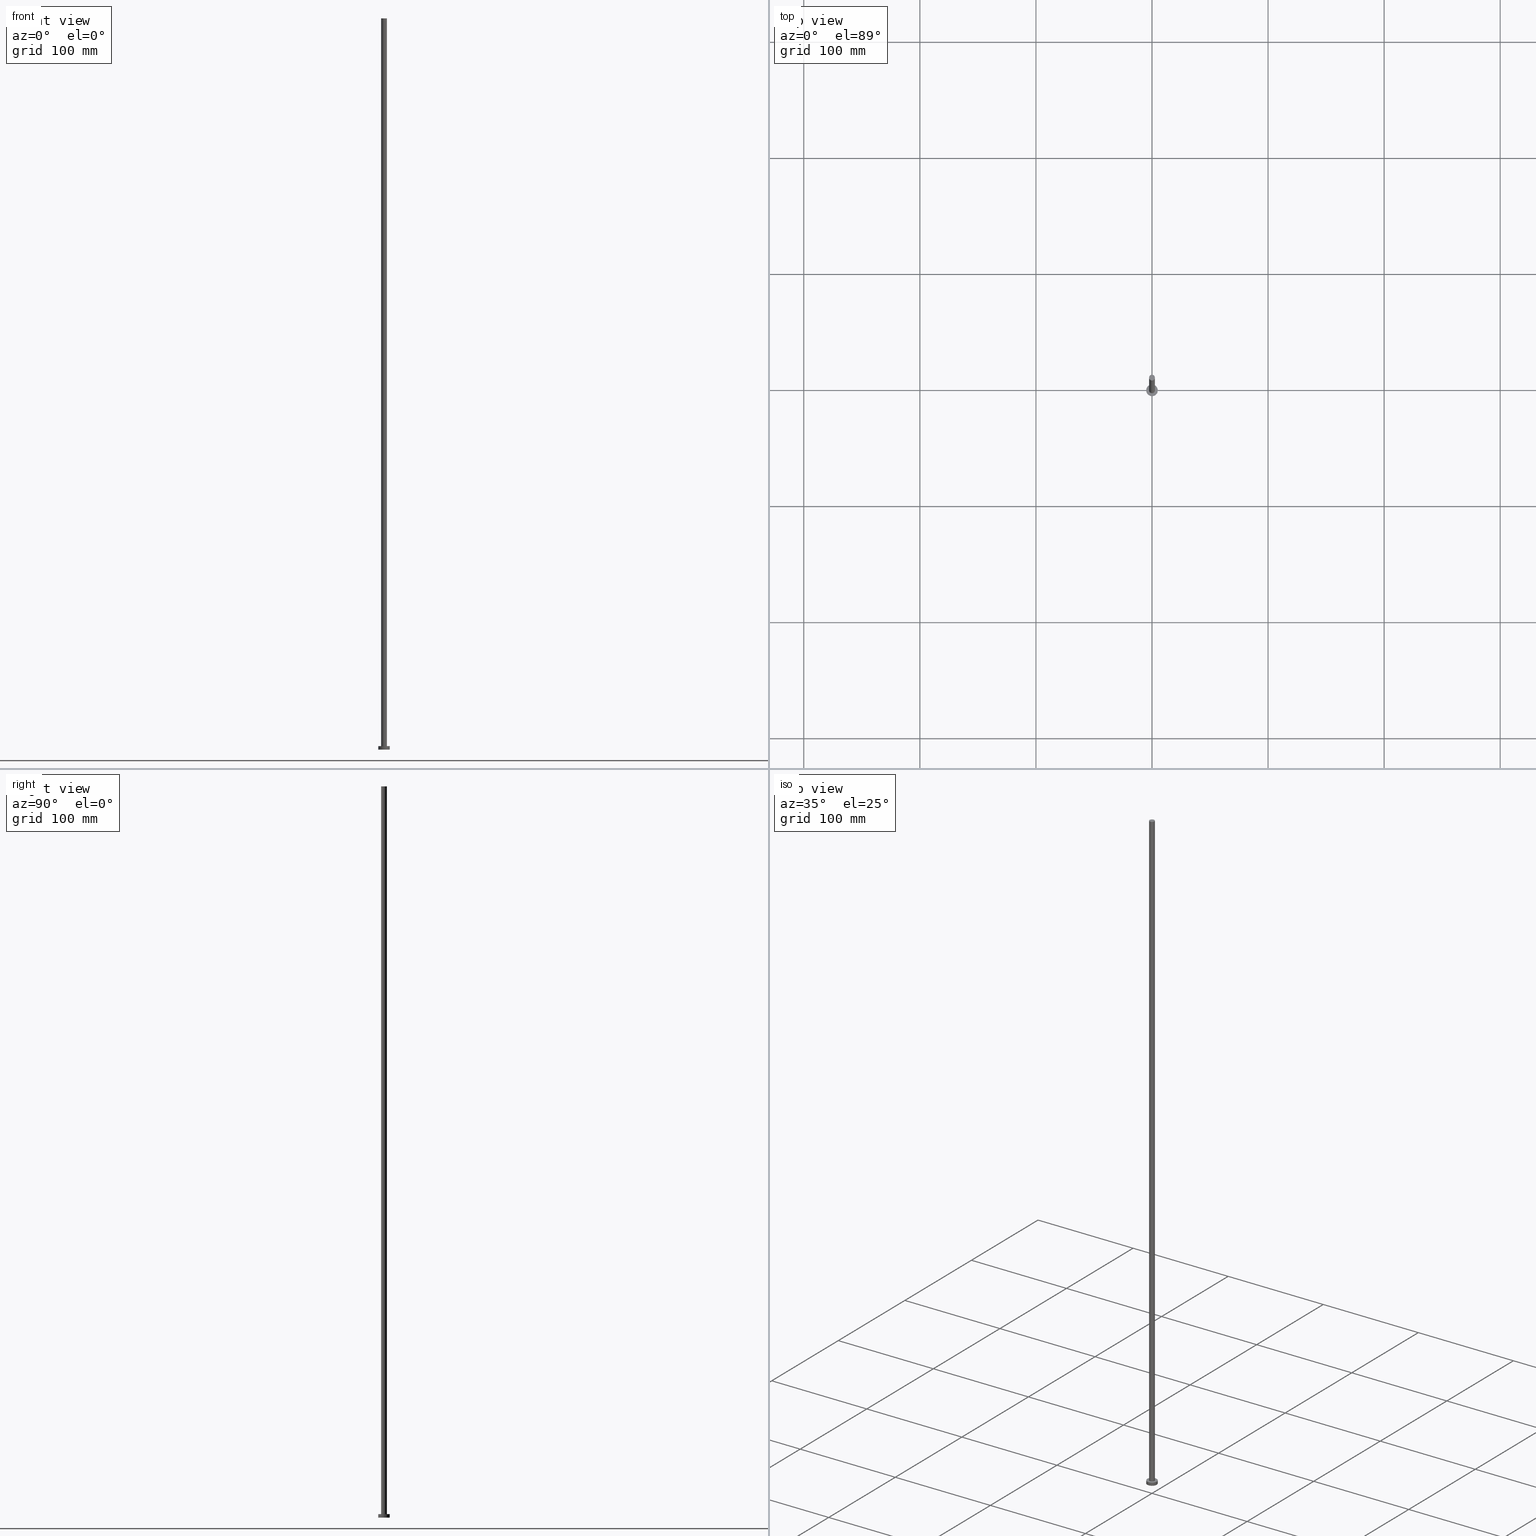
[diagram: canonical four-view strip — front | top / right | iso, engineering-drawing reading convention]
A machine part, canonical four-view strip (front | top / right | iso — engineering-drawing reading convention). The complete STEP part file that produces these views, byte-faithful:
ISO-10303-21;
HEADER;
FILE_DESCRIPTION (( 'STEP AP203' ),
    '1' );
FILE_NAME ('bdb2.STEP',
    '2023-02-12T12:29:07',
    ( '' ),
    ( '' ),
    'SwSTEP 2.0',
    'SolidWorks 2019',
    '' );
FILE_SCHEMA (( 'CONFIG_CONTROL_DESIGN' ));
ENDSEC;

DATA;
#1 = EDGE_CURVE ( 'NONE', #195, #13, #19, .T. ) ;
#2 = APPROVAL_DATE_TIME ( #101, #70 ) ;
#3 = AXIS2_PLACEMENT_3D ( 'NONE', #130, #31, #151 ) ;
#4 = APPLICATION_PROTOCOL_DEFINITION ( 'international standard', 'config_control_design', 1994, #64 ) ;
#5 = FACE_OUTER_BOUND ( 'NONE', #230, .T. ) ;
#6 = CARTESIAN_POINT ( 'NONE',  ( -5.000000000000000000, 0.000000000000000000, 3.000000000000000000 ) ) ;
#7 = ADVANCED_FACE ( 'NONE', ( #5 ), #62, .T. ) ;
#8 = CARTESIAN_POINT ( 'NONE',  ( 0.000000000000000000, 0.000000000000000000, 3.000000000000000000 ) ) ;
#9 = CYLINDRICAL_SURFACE ( 'NONE', #3, 5.000000000000000000 ) ;
#10 = CIRCLE ( 'NONE', #228, 5.000000000000000000 ) ;
#11 = ORIENTED_EDGE ( 'NONE', *, *, #95, .F. ) ;
#12 = APPROVAL ( #242, 'NEUR�EN�' ) ;
#13 = VERTEX_POINT ( 'NONE', #205 ) ;
#14 = ORIENTED_EDGE ( 'NONE', *, *, #15, .F. ) ;
#15 = EDGE_CURVE ( 'NONE', #211, #74, #232, .T. ) ;
#16 = DIRECTION ( 'NONE',  ( -0.000000000000000000, -0.000000000000000000, -1.000000000000000000 ) ) ;
#17 = CARTESIAN_POINT ( 'NONE',  ( -2.500000000000000000, 0.000000000000000000, 630.0000000000000000 ) ) ;
#18 = APPROVAL_STATUS ( 'not_yet_approved' ) ;
#19 = CIRCLE ( 'NONE', #143, 2.500000000000000000 ) ;
#20 = ORGANIZATION ( 'NEUR�EN�', 'NEUR�EN�', '' ) ;
#21 = APPROVAL_STATUS ( 'not_yet_approved' ) ;
#22 = CALENDAR_DATE ( 2023, 12, 2 ) ;
#23 = APPROVAL_ROLE ( '' ) ;
#24 = CARTESIAN_POINT ( 'NONE',  ( 0.000000000000000000, 0.000000000000000000, 630.0000000000000000 ) ) ;
#25 = AXIS2_PLACEMENT_3D ( 'NONE', #239, #165, #218 ) ;
#26 = DIRECTION ( 'NONE',  ( 1.000000000000000000, 0.000000000000000000, -0.000000000000000000 ) ) ;
#27 = DIRECTION ( 'NONE',  ( -1.000000000000000000, 0.000000000000000000, 0.000000000000000000 ) ) ;
#28 = CARTESIAN_POINT ( 'NONE',  ( 0.000000000000000000, 0.000000000000000000, 3.000000000000000000 ) ) ;
#29 = LOCAL_TIME ( 13, 29, 7.000000000000000000, #119 ) ;
#30 = CARTESIAN_POINT ( 'NONE',  ( -5.000000000000000000, 0.000000000000000000, 3.000000000000000000 ) ) ;
#31 = DIRECTION ( 'NONE',  ( -0.000000000000000000, -0.000000000000000000, -1.000000000000000000 ) ) ;
#32 = ORIENTED_EDGE ( 'NONE', *, *, #95, .T. ) ;
#33 = ADVANCED_FACE ( 'NONE', ( #86 ), #183, .T. ) ;
#34 = CC_DESIGN_APPROVAL ( #70, ( #80 ) ) ;
#35 = EDGE_CURVE ( 'NONE', #213, #58, #10, .T. ) ;
#36 = ORIENTED_EDGE ( 'NONE', *, *, #191, .F. ) ;
#37 = ORIENTED_EDGE ( 'NONE', *, *, #221, .T. ) ;
#38 = FACE_OUTER_BOUND ( 'NONE', #173, .T. ) ;
#39 = CARTESIAN_POINT ( 'NONE',  ( 2.500000000000000000, 3.061616997868383141E-16, 3.000000000000000000 ) ) ;
#40 = CARTESIAN_POINT ( 'NONE',  ( 0.000000000000000000, 0.000000000000000000, 3.000000000000000000 ) ) ;
#41 = DATE_AND_TIME ( #22, #29 ) ;
#42 = AXIS2_PLACEMENT_3D ( 'NONE', #68, #227, #129 ) ;
#43 = CIRCLE ( 'NONE', #105, 2.500000000000000000 ) ;
#44 = CALENDAR_DATE ( 2023, 12, 2 ) ;
#45 = SHAPE_DEFINITION_REPRESENTATION ( #71, #193 ) ;
#46 = DIRECTION ( 'NONE',  ( -0.000000000000000000, -0.000000000000000000, -1.000000000000000000 ) ) ;
#47 = CIRCLE ( 'NONE', #121, 2.500000000000000000 ) ;
#48 = LINE ( 'NONE', #148, #157 ) ;
#49 =( NAMED_UNIT ( * ) PLANE_ANGLE_UNIT ( ) SI_UNIT ( $, .RADIAN. ) );
#50 = ADVANCED_FACE ( 'NONE', ( #177, #81 ), #142, .T. ) ;
#51 = APPLICATION_CONTEXT ( 'configuration controlled 3d designs of mechanical parts and assemblies' ) ;
#52 = EDGE_LOOP ( 'NONE', ( #231, #137, #251, #215 ) ) ;
#53 = EDGE_CURVE ( 'NONE', #74, #195, #48, .T. ) ;
#54 = VERTEX_POINT ( 'NONE', #226 ) ;
#55 = CIRCLE ( 'NONE', #254, 5.000000000000000000 ) ;
#56 = CC_DESIGN_PERSON_AND_ORGANIZATION_ASSIGNMENT ( #125, #238, ( #172 ) ) ;
#57 = EDGE_LOOP ( 'NONE', ( #154, #134 ) ) ;
#58 = VERTEX_POINT ( 'NONE', #98 ) ;
#59 = DIRECTION ( 'NONE',  ( 0.000000000000000000, 0.000000000000000000, 1.000000000000000000 ) ) ;
#60 = APPROVAL_PERSON_ORGANIZATION ( #82, #204, #23 ) ;
#61 = DIRECTION ( 'NONE',  ( 1.000000000000000000, 0.000000000000000000, 0.000000000000000000 ) ) ;
#62 = CYLINDRICAL_SURFACE ( 'NONE', #170, 5.000000000000000000 ) ;
#63 = PRODUCT_RELATED_PRODUCT_CATEGORY ( 'detail', '', ( #91 ) ) ;
#64 = APPLICATION_CONTEXT ( 'configuration controlled 3d designs of mechanical parts and assemblies' ) ;
#65 = COORDINATED_UNIVERSAL_TIME_OFFSET ( 1, 0, .AHEAD. ) ;
#66 = DATE_AND_TIME ( #44, #135 ) ;
#67 = DIRECTION ( 'NONE',  ( -0.000000000000000000, -0.000000000000000000, -1.000000000000000000 ) ) ;
#68 = CARTESIAN_POINT ( 'NONE',  ( 0.000000000000000000, 0.000000000000000000, 0.000000000000000000 ) ) ;
#69 = DIRECTION ( 'NONE',  ( 0.000000000000000000, 0.000000000000000000, 1.000000000000000000 ) ) ;
#70 = APPROVAL ( #18, 'NEUR�EN�' ) ;
#71 = PRODUCT_DEFINITION_SHAPE ( 'NONE', 'NONE',  #162 ) ;
#72 = DIRECTION ( 'NONE',  ( 1.000000000000000000, 0.000000000000000000, 0.000000000000000000 ) ) ;
#73 = EDGE_CURVE ( 'NONE', #74, #211, #47, .T. ) ;
#74 = VERTEX_POINT ( 'NONE', #147 ) ;
#75 = CIRCLE ( 'NONE', #25, 5.000000000000000000 ) ;
#76 = EDGE_LOOP ( 'NONE', ( #37, #112 ) ) ;
#77 = EDGE_LOOP ( 'NONE', ( #92, #14, #32, #96 ) ) ;
#78 = DIRECTION ( 'NONE',  ( 0.000000000000000000, 0.000000000000000000, 1.000000000000000000 ) ) ;
#79 = VECTOR ( 'NONE', #255, 1000.000000000000000 ) ;
#80 = PRODUCT_DEFINITION_FORMATION_WITH_SPECIFIED_SOURCE ( 'LIBOVOLN�', '', #91, .NOT_KNOWN. ) ;
#81 = FACE_OUTER_BOUND ( 'NONE', #76, .T. ) ;
#82 = PERSON_AND_ORGANIZATION ( #102, #20 ) ;
#83 = COORDINATED_UNIVERSAL_TIME_OFFSET ( 1, 0, .AHEAD. ) ;
#84 = PERSON_AND_ORGANIZATION_ROLE ( 'design_owner' ) ;
#85 = FACE_OUTER_BOUND ( 'NONE', #57, .T. ) ;
#86 = FACE_OUTER_BOUND ( 'NONE', #77, .T. ) ;
#87 = DIRECTION ( 'NONE',  ( -0.000000000000000000, -0.000000000000000000, -1.000000000000000000 ) ) ;
#88 =( GEOMETRIC_REPRESENTATION_CONTEXT ( 3 ) GLOBAL_UNCERTAINTY_ASSIGNED_CONTEXT ( ( #219 ) ) GLOBAL_UNIT_ASSIGNED_CONTEXT ( ( #229, #49, #110 ) ) REPRESENTATION_CONTEXT ( 'NONE', 'WORKASPACE' ) );
#89 = CARTESIAN_POINT ( 'NONE',  ( -5.000000000000000000, 0.000000000000000000, 0.000000000000000000 ) ) ;
#90 = ADVANCED_FACE ( 'NONE', ( #85 ), #158, .T. ) ;
#91 = PRODUCT ( 'bdb2', 'bdb2', '', ( #126 ) ) ;
#92 = ORIENTED_EDGE ( 'NONE', *, *, #53, .F. ) ;
#93 = EDGE_LOOP ( 'NONE', ( #169, #138 ) ) ;
#94 = ORIENTED_EDGE ( 'NONE', *, *, #1, .T. ) ;
#95 = EDGE_CURVE ( 'NONE', #211, #13, #253, .T. ) ;
#96 = ORIENTED_EDGE ( 'NONE', *, *, #214, .T. ) ;
#97 = EDGE_CURVE ( 'NONE', #54, #234, #55, .T. ) ;
#98 = CARTESIAN_POINT ( 'NONE',  ( 5.000000000000000000, 6.123233995736766282E-16, 0.000000000000000000 ) ) ;
#99 = DIRECTION ( 'NONE',  ( 0.000000000000000000, 0.000000000000000000, 1.000000000000000000 ) ) ;
#100 = APPROVAL_ROLE ( '' ) ;
#101 = DATE_AND_TIME ( #146, #171 ) ;
#102 = PERSON ( 'NEUR�EN�', 'NEUR�EN�', 'NEUR�EN�', ('NEUR�EN�'), ('NEUR�EN�'), ('NEUR�EN�') ) ;
#103 = COORDINATED_UNIVERSAL_TIME_OFFSET ( 1, 0, .AHEAD. ) ;
#104 = PERSON_AND_ORGANIZATION ( #102, #20 ) ;
#105 = AXIS2_PLACEMENT_3D ( 'NONE', #188, #166, #207 ) ;
#106 = DIRECTION ( 'NONE',  ( 0.000000000000000000, 0.000000000000000000, 1.000000000000000000 ) ) ;
#107 = DIRECTION ( 'NONE',  ( 1.000000000000000000, 0.000000000000000000, 0.000000000000000000 ) ) ;
#108 = DIRECTION ( 'NONE',  ( 1.000000000000000000, 0.000000000000000000, -0.000000000000000000 ) ) ;
#109 = DIRECTION ( 'NONE',  ( 0.000000000000000000, 0.000000000000000000, 1.000000000000000000 ) ) ;
#110 =( NAMED_UNIT ( * ) SI_UNIT ( $, .STERADIAN. ) SOLID_ANGLE_UNIT ( ) );
#111 = EDGE_CURVE ( 'NONE', #234, #213, #156, .T. ) ;
#112 = ORIENTED_EDGE ( 'NONE', *, *, #97, .T. ) ;
#113 = DIRECTION ( 'NONE',  ( 1.000000000000000000, 0.000000000000000000, 0.000000000000000000 ) ) ;
#114 = CC_DESIGN_DATE_AND_TIME_ASSIGNMENT ( #240, #184, ( #172 ) ) ;
#115 = ORIENTED_EDGE ( 'NONE', *, *, #182, .T. ) ;
#116 = CC_DESIGN_PERSON_AND_ORGANIZATION_ASSIGNMENT ( #145, #224, ( #162 ) ) ;
#117 = CYLINDRICAL_SURFACE ( 'NONE', #248, 2.500000000000000000 ) ;
#118 = DIRECTION ( 'NONE',  ( -1.000000000000000000, 0.000000000000000000, 0.000000000000000000 ) ) ;
#119 = COORDINATED_UNIVERSAL_TIME_OFFSET ( 1, 0, .AHEAD. ) ;
#120 = CARTESIAN_POINT ( 'NONE',  ( 0.000000000000000000, 0.000000000000000000, 3.000000000000000000 ) ) ;
#121 = AXIS2_PLACEMENT_3D ( 'NONE', #222, #99, #61 ) ;
#122 = CC_DESIGN_SECURITY_CLASSIFICATION ( #172, ( #80 ) ) ;
#123 = PERSON_AND_ORGANIZATION ( #102, #20 ) ;
#124 = DESIGN_CONTEXT ( 'detailed design', #64, 'design' ) ;
#125 = PERSON_AND_ORGANIZATION ( #102, #20 ) ;
#126 = MECHANICAL_CONTEXT ( 'NONE', #51, 'mechanical' ) ;
#127 = SECURITY_CLASSIFICATION_LEVEL ( 'unclassified' ) ;
#128 = DIRECTION ( 'NONE',  ( 0.000000000000000000, 0.000000000000000000, 1.000000000000000000 ) ) ;
#129 = DIRECTION ( 'NONE',  ( 1.000000000000000000, 0.000000000000000000, -0.000000000000000000 ) ) ;
#130 = CARTESIAN_POINT ( 'NONE',  ( 0.000000000000000000, 0.000000000000000000, 3.000000000000000000 ) ) ;
#131 = AXIS2_PLACEMENT_3D ( 'NONE', #120, #128, #108 ) ;
#132 = CC_DESIGN_APPROVAL ( #12, ( #172 ) ) ;
#133 = ORIENTED_EDGE ( 'NONE', *, *, #35, .F. ) ;
#134 = ORIENTED_EDGE ( 'NONE', *, *, #73, .T. ) ;
#135 = LOCAL_TIME ( 13, 29, 7.000000000000000000, #103 ) ;
#136 = EDGE_LOOP ( 'NONE', ( #133, #36 ) ) ;
#137 = ORIENTED_EDGE ( 'NONE', *, *, #221, .F. ) ;
#138 = ORIENTED_EDGE ( 'NONE', *, *, #1, .F. ) ;
#139 = CARTESIAN_POINT ( 'NONE',  ( 0.000000000000000000, 0.000000000000000000, 630.0000000000000000 ) ) ;
#140 = DIRECTION ( 'NONE',  ( -0.000000000000000000, -0.000000000000000000, -1.000000000000000000 ) ) ;
#141 = PERSON_AND_ORGANIZATION_ROLE ( 'creator' ) ;
#142 = PLANE ( 'NONE',  #131 ) ;
#143 = AXIS2_PLACEMENT_3D ( 'NONE', #168, #250, #113 ) ;
#144 = PERSON_AND_ORGANIZATION ( #102, #20 ) ;
#145 = PERSON_AND_ORGANIZATION ( #102, #20 ) ;
#146 = CALENDAR_DATE ( 2023, 12, 2 ) ;
#147 = CARTESIAN_POINT ( 'NONE',  ( 2.500000000000000000, 3.061616997868383141E-16, 630.0000000000000000 ) ) ;
#148 = CARTESIAN_POINT ( 'NONE',  ( 2.500000000000000000, 3.061616997868383141E-16, 630.0000000000000000 ) ) ;
#149 = CC_DESIGN_PERSON_AND_ORGANIZATION_ASSIGNMENT ( #104, #203, ( #80 ) ) ;
#150 = DIRECTION ( 'NONE',  ( 1.000000000000000000, 0.000000000000000000, 0.000000000000000000 ) ) ;
#151 = DIRECTION ( 'NONE',  ( -1.000000000000000000, 0.000000000000000000, 0.000000000000000000 ) ) ;
#152 = APPLICATION_PROTOCOL_DEFINITION ( 'international standard', 'config_control_design', 1994, #51 ) ;
#153 = VECTOR ( 'NONE', #140, 1000.000000000000000 ) ;
#154 = ORIENTED_EDGE ( 'NONE', *, *, #15, .T. ) ;
#155 = CC_DESIGN_DATE_AND_TIME_ASSIGNMENT ( #41, #178, ( #162 ) ) ;
#156 = LINE ( 'NONE', #6, #153 ) ;
#157 = VECTOR ( 'NONE', #67, 1000.000000000000000 ) ;
#158 = PLANE ( 'NONE',  #190 ) ;
#159 = COORDINATED_UNIVERSAL_TIME_OFFSET ( 1, 0, .AHEAD. ) ;
#160 = AXIS2_PLACEMENT_3D ( 'NONE', #139, #163, #220 ) ;
#161 = CALENDAR_DATE ( 2023, 12, 2 ) ;
#162 = PRODUCT_DEFINITION ( 'NEZN�M�', '', #80, #124 ) ;
#163 = DIRECTION ( 'NONE',  ( -0.000000000000000000, -0.000000000000000000, -1.000000000000000000 ) ) ;
#164 = FACE_OUTER_BOUND ( 'NONE', #136, .T. ) ;
#165 = DIRECTION ( 'NONE',  ( 0.000000000000000000, 0.000000000000000000, 1.000000000000000000 ) ) ;
#166 = DIRECTION ( 'NONE',  ( 0.000000000000000000, 0.000000000000000000, 1.000000000000000000 ) ) ;
#167 = ADVANCED_FACE ( 'NONE', ( #164 ), #245, .F. ) ;
#168 = CARTESIAN_POINT ( 'NONE',  ( 0.000000000000000000, 0.000000000000000000, 3.000000000000000000 ) ) ;
#169 = ORIENTED_EDGE ( 'NONE', *, *, #214, .F. ) ;
#170 = AXIS2_PLACEMENT_3D ( 'NONE', #40, #46, #27 ) ;
#171 = LOCAL_TIME ( 13, 29, 7.000000000000000000, #159 ) ;
#172 = SECURITY_CLASSIFICATION ( '', '', #127 ) ;
#173 = EDGE_LOOP ( 'NONE', ( #210, #192, #94, #11 ) ) ;
#174 = ORIENTED_EDGE ( 'NONE', *, *, #191, .T. ) ;
#175 = MANIFOLD_SOLID_BREP ( 'P�idat vysunut�m3', #235 ) ;
#176 = DIRECTION ( 'NONE',  ( 1.000000000000000000, 0.000000000000000000, 0.000000000000000000 ) ) ;
#177 = FACE_BOUND ( 'NONE', #93, .T. ) ;
#178 = DATE_TIME_ROLE ( 'creation_date' ) ;
#179 = CIRCLE ( 'NONE', #217, 5.000000000000000000 ) ;
#180 = LOCAL_TIME ( 13, 29, 7.000000000000000000, #65 ) ;
#181 = APPROVAL_DATE_TIME ( #66, #204 ) ;
#182 = EDGE_CURVE ( 'NONE', #54, #58, #206, .T. ) ;
#183 = CYLINDRICAL_SURFACE ( 'NONE', #160, 2.500000000000000000 ) ;
#184 = DATE_TIME_ROLE ( 'classification_date' ) ;
#185 = CARTESIAN_POINT ( 'NONE',  ( 0.000000000000000000, 0.000000000000000000, 630.0000000000000000 ) ) ;
#186 = CARTESIAN_POINT ( 'NONE',  ( 5.000000000000000000, 6.123233995736766282E-16, 3.000000000000000000 ) ) ;
#187 = VECTOR ( 'NONE', #87, 1000.000000000000000 ) ;
#188 = CARTESIAN_POINT ( 'NONE',  ( 0.000000000000000000, 0.000000000000000000, 3.000000000000000000 ) ) ;
#189 = ORIENTED_EDGE ( 'NONE', *, *, #97, .F. ) ;
#190 = AXIS2_PLACEMENT_3D ( 'NONE', #24, #200, #26 ) ;
#191 = EDGE_CURVE ( 'NONE', #58, #213, #75, .T. ) ;
#192 = ORIENTED_EDGE ( 'NONE', *, *, #53, .T. ) ;
#193 = ADVANCED_BREP_SHAPE_REPRESENTATION ( 'bdb2', ( #175, #194 ), #88 ) ;
#194 = AXIS2_PLACEMENT_3D ( 'NONE', #246, #69, #150 ) ;
#195 = VERTEX_POINT ( 'NONE', #39 ) ;
#196 = ADVANCED_FACE ( 'NONE', ( #38 ), #117, .T. ) ;
#197 = CARTESIAN_POINT ( 'NONE',  ( 0.000000000000000000, 0.000000000000000000, 630.0000000000000000 ) ) ;
#198 = FACE_OUTER_BOUND ( 'NONE', #52, .T. ) ;
#199 = PERSON_AND_ORGANIZATION ( #102, #20 ) ;
#200 = DIRECTION ( 'NONE',  ( 0.000000000000000000, 0.000000000000000000, 1.000000000000000000 ) ) ;
#201 = PERSON_AND_ORGANIZATION ( #102, #20 ) ;
#202 = DATE_AND_TIME ( #225, #180 ) ;
#203 = PERSON_AND_ORGANIZATION_ROLE ( 'design_supplier' ) ;
#204 = APPROVAL ( #21, 'NEUR�EN�' ) ;
#205 = CARTESIAN_POINT ( 'NONE',  ( -2.500000000000000000, 0.000000000000000000, 3.000000000000000000 ) ) ;
#206 = LINE ( 'NONE', #186, #187 ) ;
#207 = DIRECTION ( 'NONE',  ( 1.000000000000000000, 0.000000000000000000, 0.000000000000000000 ) ) ;
#208 = CC_DESIGN_APPROVAL ( #204, ( #162 ) ) ;
#209 = ADVANCED_FACE ( 'NONE', ( #198 ), #9, .T. ) ;
#210 = ORIENTED_EDGE ( 'NONE', *, *, #73, .F. ) ;
#211 = VERTEX_POINT ( 'NONE', #247 ) ;
#212 = CC_DESIGN_PERSON_AND_ORGANIZATION_ASSIGNMENT ( #144, #141, ( #80 ) ) ;
#213 = VERTEX_POINT ( 'NONE', #89 ) ;
#214 = EDGE_CURVE ( 'NONE', #13, #195, #43, .T. ) ;
#215 = ORIENTED_EDGE ( 'NONE', *, *, #35, .T. ) ;
#216 = APPROVAL_PERSON_ORGANIZATION ( #199, #70, #243 ) ;
#217 = AXIS2_PLACEMENT_3D ( 'NONE', #28, #109, #72 ) ;
#218 = DIRECTION ( 'NONE',  ( 1.000000000000000000, 0.000000000000000000, 0.000000000000000000 ) ) ;
#219 = UNCERTAINTY_MEASURE_WITH_UNIT (LENGTH_MEASURE( 1.000000000000000082E-05 ), #229, 'distance_accuracy_value', 'NONE');
#220 = DIRECTION ( 'NONE',  ( -1.000000000000000000, 0.000000000000000000, 0.000000000000000000 ) ) ;
#221 = EDGE_CURVE ( 'NONE', #234, #54, #179, .T. ) ;
#222 = CARTESIAN_POINT ( 'NONE',  ( 0.000000000000000000, 0.000000000000000000, 630.0000000000000000 ) ) ;
#223 = APPROVAL_DATE_TIME ( #202, #12 ) ;
#224 = PERSON_AND_ORGANIZATION_ROLE ( 'creator' ) ;
#225 = CALENDAR_DATE ( 2023, 12, 2 ) ;
#226 = CARTESIAN_POINT ( 'NONE',  ( 5.000000000000000000, 6.123233995736766282E-16, 3.000000000000000000 ) ) ;
#227 = DIRECTION ( 'NONE',  ( 0.000000000000000000, 0.000000000000000000, 1.000000000000000000 ) ) ;
#228 = AXIS2_PLACEMENT_3D ( 'NONE', #237, #106, #244 ) ;
#229 =( LENGTH_UNIT ( ) NAMED_UNIT ( * ) SI_UNIT ( .MILLI., .METRE. ) );
#230 = EDGE_LOOP ( 'NONE', ( #189, #115, #174, #252 ) ) ;
#231 = ORIENTED_EDGE ( 'NONE', *, *, #182, .F. ) ;
#232 = CIRCLE ( 'NONE', #241, 2.500000000000000000 ) ;
#233 = APPROVAL_PERSON_ORGANIZATION ( #123, #12, #100 ) ;
#234 = VERTEX_POINT ( 'NONE', #30 ) ;
#235 = CLOSED_SHELL ( 'NONE', ( #196, #7, #209, #50, #167, #33, #90 ) ) ;
#236 = LOCAL_TIME ( 13, 29, 7.000000000000000000, #83 ) ;
#237 = CARTESIAN_POINT ( 'NONE',  ( 0.000000000000000000, 0.000000000000000000, 0.000000000000000000 ) ) ;
#238 = PERSON_AND_ORGANIZATION_ROLE ( 'classification_officer' ) ;
#239 = CARTESIAN_POINT ( 'NONE',  ( 0.000000000000000000, 0.000000000000000000, 0.000000000000000000 ) ) ;
#240 = DATE_AND_TIME ( #161, #236 ) ;
#241 = AXIS2_PLACEMENT_3D ( 'NONE', #185, #59, #176 ) ;
#242 = APPROVAL_STATUS ( 'not_yet_approved' ) ;
#243 = APPROVAL_ROLE ( '' ) ;
#244 = DIRECTION ( 'NONE',  ( 1.000000000000000000, 0.000000000000000000, 0.000000000000000000 ) ) ;
#245 = PLANE ( 'NONE',  #42 ) ;
#246 = CARTESIAN_POINT ( 'NONE',  ( 0.000000000000000000, 0.000000000000000000, 0.000000000000000000 ) ) ;
#247 = CARTESIAN_POINT ( 'NONE',  ( -2.500000000000000000, 0.000000000000000000, 630.0000000000000000 ) ) ;
#248 = AXIS2_PLACEMENT_3D ( 'NONE', #197, #16, #118 ) ;
#249 = CC_DESIGN_PERSON_AND_ORGANIZATION_ASSIGNMENT ( #201, #84, ( #91 ) ) ;
#250 = DIRECTION ( 'NONE',  ( 0.000000000000000000, 0.000000000000000000, 1.000000000000000000 ) ) ;
#251 = ORIENTED_EDGE ( 'NONE', *, *, #111, .T. ) ;
#252 = ORIENTED_EDGE ( 'NONE', *, *, #111, .F. ) ;
#253 = LINE ( 'NONE', #17, #79 ) ;
#254 = AXIS2_PLACEMENT_3D ( 'NONE', #8, #78, #107 ) ;
#255 = DIRECTION ( 'NONE',  ( -0.000000000000000000, -0.000000000000000000, -1.000000000000000000 ) ) ;
ENDSEC;
END-ISO-10303-21;
